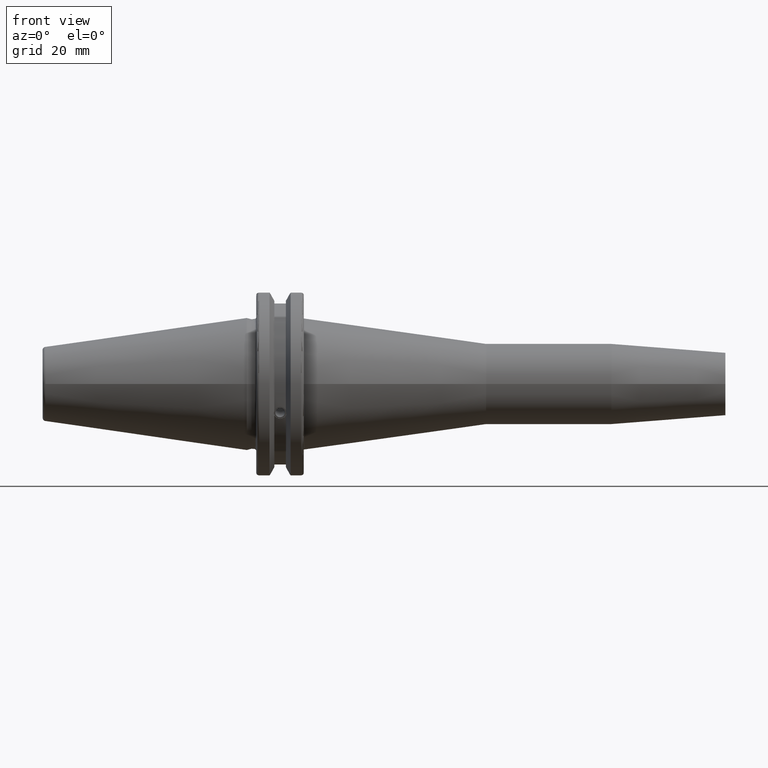
[diagram: clean part render]
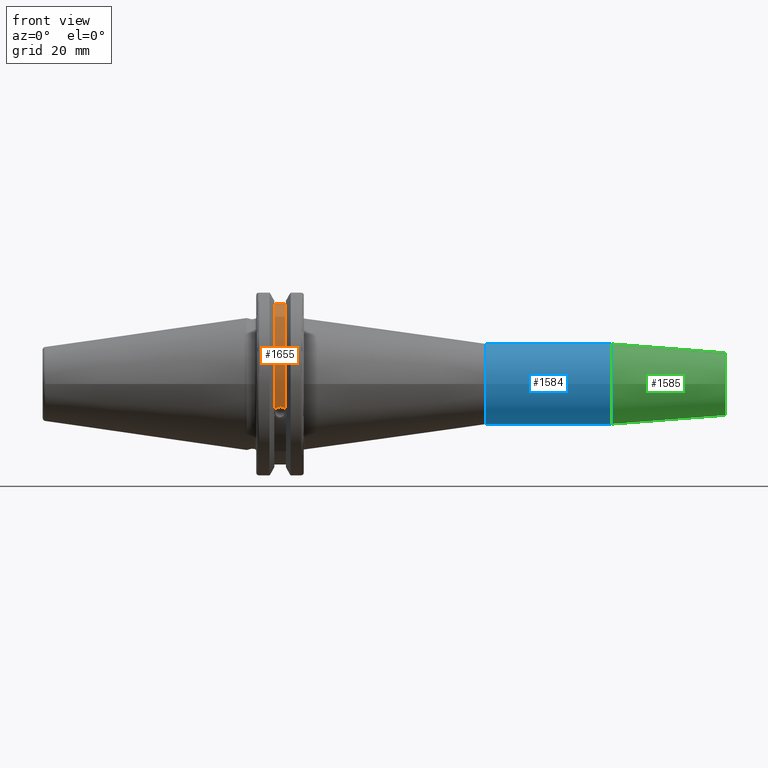
[diagram: same view with three faces highlighted in distinct colors, each labeled with its STEP entity id]
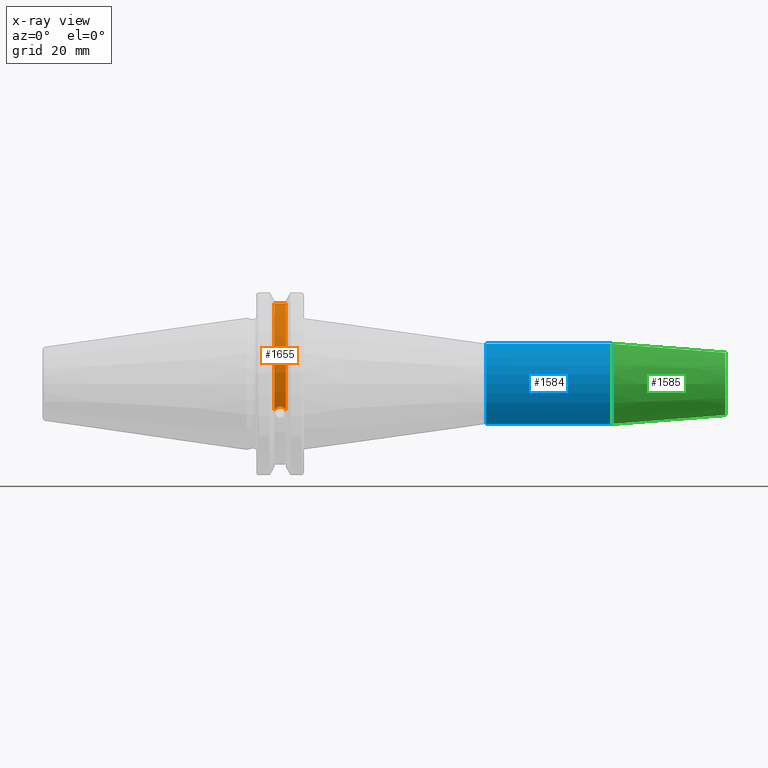
[diagram: x-ray of the same camera — body ghosted, the three highlighted faces saturated]
A machine part, front view with three faces highlighted in distinct colors.
The next image is the same camera in x-ray (body ghosted, the three faces saturated) — at least one of them is partly hidden behind the body in this view.
Their STEP definitions:

[orange] entity #1655 — the highlighted cylindrical surface (partial cylindrical patch) has radius 28.15 mm, axis along (1, 0, 0).
#60=B_SPLINE_CURVE_WITH_KNOTS('',3,(#2556,#2557,#2558,#2559,#2560,#2561,
#2562,#2563,#2564,#2565,#2566,#2567,#2568,#2569),.UNSPECIFIED.,.F.,.F.,
(4,2,2,2,2,2,4),(0.401639126382403,0.474814416953736,0.553950208498303,
0.63308600004287,0.712221791587437,0.791357583132004,0.864532873703336),
 .UNSPECIFIED.);
#137=CYLINDRICAL_SURFACE('',#1861,28.15);
#239=FACE_OUTER_BOUND('',#349,.T.);
#349=EDGE_LOOP('',(#1481,#1482,#1483,#1484));
#429=CIRCLE('',#1862,28.15);
#430=CIRCLE('',#1863,28.15);
#509=LINE('',#2994,#612);
#612=VECTOR('',#2216,10.);
#679=VERTEX_POINT('',#2553);
#680=VERTEX_POINT('',#2555);
#775=VERTEX_POINT('',#2991);
#776=VERTEX_POINT('',#2993);
#858=EDGE_CURVE('',#680,#679,#60,.T.);
#985=EDGE_CURVE('',#776,#775,#509,.T.);
#1036=EDGE_CURVE('',#776,#679,#429,.T.);
#1037=EDGE_CURVE('',#775,#680,#430,.T.);
#1481=ORIENTED_EDGE('',*,*,#858,.T.);
#1482=ORIENTED_EDGE('',*,*,#1036,.F.);
#1483=ORIENTED_EDGE('',*,*,#985,.T.);
#1484=ORIENTED_EDGE('',*,*,#1037,.T.);
#1655=ADVANCED_FACE('',(#239),#137,.T.);
#1861=AXIS2_PLACEMENT_3D('',#3142,#2324,#2325);
#1862=AXIS2_PLACEMENT_3D('',#3143,#2326,#2327);
#1863=AXIS2_PLACEMENT_3D('',#3144,#2328,#2329);
#2216=DIRECTION('',(-1.,0.,0.));
#2324=DIRECTION('center_axis',(1.,0.,0.));
#2325=DIRECTION('ref_axis',(0.,-0.887654187951484,0.46051063246378));
#2326=DIRECTION('center_axis',(1.,0.,0.));
#2327=DIRECTION('ref_axis',(0.,0.,-1.));
#2328=DIRECTION('center_axis',(1.,0.,0.));
#2329=DIRECTION('ref_axis',(0.,0.,-1.));
#2553=CARTESIAN_POINT('',(13.0491,-26.734714844398,-8.81348524641211));
#2555=CARTESIAN_POINT('',(9.2191,-26.734714844398,-8.81348524641212));
#2556=CARTESIAN_POINT('Ctrl Pts',(9.2191,-26.734714844398,-8.81348524641212));
#2557=CARTESIAN_POINT('Ctrl Pts',(9.32533057097183,-26.8086519721597,-8.58920529678291));
#2558=CARTESIAN_POINT('Ctrl Pts',(9.47682013770509,-26.8729987454904,-8.38416529997369));
#2559=CARTESIAN_POINT('Ctrl Pts',(9.83557062657411,-26.9778908791383,-8.04056861831091));
#2560=CARTESIAN_POINT('Ctrl Pts',(10.0716450112988,-27.0233016799732,-7.88512567185902));
#2561=CARTESIAN_POINT('Ctrl Pts',(10.5890125426388,-27.0826966800569,-7.6786444840004));
#2562=CARTESIAN_POINT('Ctrl Pts',(10.8703140281848,-27.0968804077294,-7.62768458768512));
#2563=CARTESIAN_POINT('Ctrl Pts',(11.3978859718152,-27.0968804077294,-7.62768458768512));
#2564=CARTESIAN_POINT('Ctrl Pts',(11.6791874573612,-27.0826966800569,-7.6786444840004));
#2565=CARTESIAN_POINT('Ctrl Pts',(12.1965549887012,-27.0233016799732,-7.88512567185902));
#2566=CARTESIAN_POINT('Ctrl Pts',(12.4326293734259,-26.9778908791383,-8.04056861831091));
#2567=CARTESIAN_POINT('Ctrl Pts',(12.7913798622949,-26.8729987454904,-8.38416529997369));
#2568=CARTESIAN_POINT('Ctrl Pts',(12.9428694290282,-26.8086519721597,-8.5892052967829));
#2569=CARTESIAN_POINT('Ctrl Pts',(13.0491,-26.734714844398,-8.81348524641211));
#2991=CARTESIAN_POINT('',(9.2191,-8.19,26.932255754021));
#2993=CARTESIAN_POINT('',(13.0491,-8.19,26.932255754021));
#2994=CARTESIAN_POINT('',(11.1341,-8.19,26.932255754021));
#3142=CARTESIAN_POINT('Origin',(11.1341,0.,0.));
#3143=CARTESIAN_POINT('Origin',(13.0491,0.,0.));
#3144=CARTESIAN_POINT('Origin',(9.2191,0.,0.));

[blue] entity #1584 — the highlighted cylindrical surface (bore or boss wall) has radius 13.5 mm, axis along (1, 0, 0).
#112=CYLINDRICAL_SURFACE('',#1717,13.5);
#168=FACE_OUTER_BOUND('',#264,.T.);
#264=EDGE_LOOP('',(#1095,#1096,#1097,#1098));
#372=CIRCLE('',#1715,13.5);
#374=CIRCLE('',#1718,13.5);
#447=LINE('',#2499,#550);
#550=VECTOR('',#1952,13.5);
#661=VERTEX_POINT('',#2491);
#663=VERTEX_POINT('',#2497);
#830=EDGE_CURVE('',#661,#661,#372,.T.);
#833=EDGE_CURVE('',#663,#663,#374,.T.);
#834=EDGE_CURVE('',#663,#661,#447,.T.);
#1095=ORIENTED_EDGE('',*,*,#833,.F.);
#1096=ORIENTED_EDGE('',*,*,#834,.T.);
#1097=ORIENTED_EDGE('',*,*,#830,.T.);
#1098=ORIENTED_EDGE('',*,*,#834,.F.);
#1584=ADVANCED_FACE('',(#168),#112,.T.);
#1715=AXIS2_PLACEMENT_3D('',#2492,#1943,#1944);
#1717=AXIS2_PLACEMENT_3D('',#2496,#1948,#1949);
#1718=AXIS2_PLACEMENT_3D('',#2498,#1950,#1951);
#1943=DIRECTION('center_axis',(1.,0.,0.));
#1944=DIRECTION('ref_axis',(0.,0.,-1.));
#1948=DIRECTION('center_axis',(1.,0.,0.));
#1949=DIRECTION('ref_axis',(0.,1.,0.));
#1950=DIRECTION('center_axis',(1.,0.,0.));
#1951=DIRECTION('ref_axis',(0.,0.,-1.));
#1952=DIRECTION('',(-1.,0.,0.));
#2491=CARTESIAN_POINT('',(80.,-13.5,-1.65327317884893E-15));
#2492=CARTESIAN_POINT('Origin',(80.,0.,0.));
#2496=CARTESIAN_POINT('Origin',(100.940692895738,0.,0.));
#2497=CARTESIAN_POINT('',(121.881385791476,-13.5,-1.65327317884893E-15));
#2498=CARTESIAN_POINT('Origin',(121.881385791476,0.,0.));
#2499=CARTESIAN_POINT('',(100.940692895738,-13.5,-1.65327317884893E-15));

[green] entity #1585 — the highlighted conical surface has half-angle 4.5 deg.
#144=CONICAL_SURFACE('',#1719,12.,0.0785398163397452);
#169=FACE_OUTER_BOUND('',#265,.T.);
#265=EDGE_LOOP('',(#1099,#1100,#1101,#1102));
#374=CIRCLE('',#1718,13.5);
#375=CIRCLE('',#1720,10.5);
#448=LINE('',#2503,#551);
#551=VECTOR('',#1957,12.);
#663=VERTEX_POINT('',#2497);
#664=VERTEX_POINT('',#2501);
#833=EDGE_CURVE('',#663,#663,#374,.T.);
#835=EDGE_CURVE('',#664,#664,#375,.T.);
#836=EDGE_CURVE('',#664,#663,#448,.T.);
#1099=ORIENTED_EDGE('',*,*,#835,.F.);
#1100=ORIENTED_EDGE('',*,*,#836,.T.);
#1101=ORIENTED_EDGE('',*,*,#833,.T.);
#1102=ORIENTED_EDGE('',*,*,#836,.F.);
#1585=ADVANCED_FACE('',(#169),#144,.T.);
#1718=AXIS2_PLACEMENT_3D('',#2498,#1950,#1951);
#1719=AXIS2_PLACEMENT_3D('',#2500,#1953,#1954);
#1720=AXIS2_PLACEMENT_3D('',#2502,#1955,#1956);
#1950=DIRECTION('center_axis',(1.,0.,0.));
#1951=DIRECTION('ref_axis',(0.,0.,-1.));
#1953=DIRECTION('center_axis',(-1.,0.,0.));
#1954=DIRECTION('ref_axis',(0.,1.,0.));
#1955=DIRECTION('center_axis',(1.,0.,0.));
#1956=DIRECTION('ref_axis',(0.,0.,-1.));
#1957=DIRECTION('',(-0.996917333733128,-0.0784590957278453,-9.60846804471016E-18));
#2497=CARTESIAN_POINT('',(121.881385791476,-13.5,-1.65327317884893E-15));
#2498=CARTESIAN_POINT('Origin',(121.881385791476,0.,0.));
#2500=CARTESIAN_POINT('Origin',(140.940692895738,0.,0.));
#2501=CARTESIAN_POINT('',(160.,-10.5,-1.28587913910472E-15));
#2502=CARTESIAN_POINT('Origin',(160.,0.,0.));
#2503=CARTESIAN_POINT('',(140.940692895738,-12.,-1.46957615897682E-15));